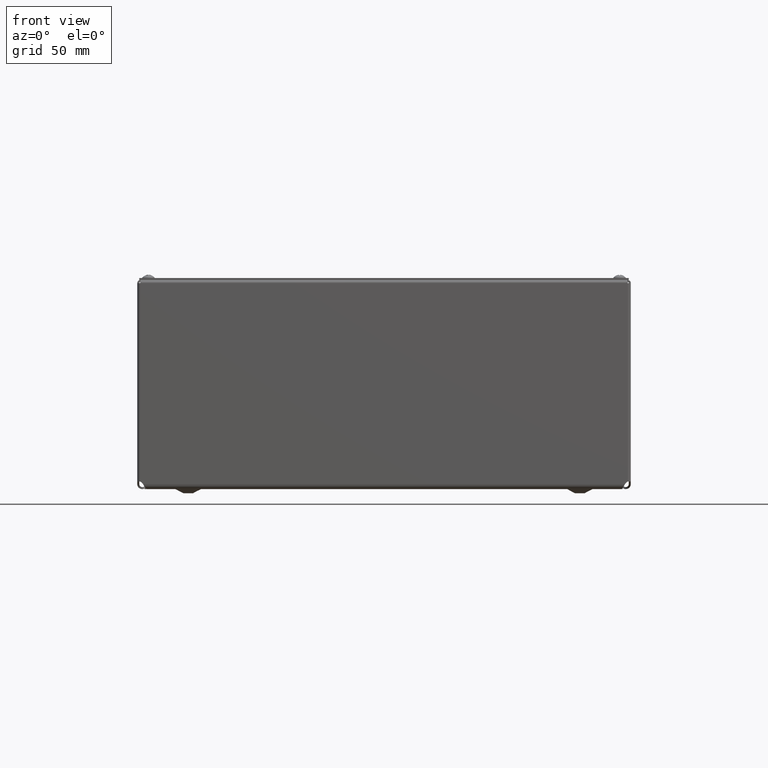
[diagram: clean part render]
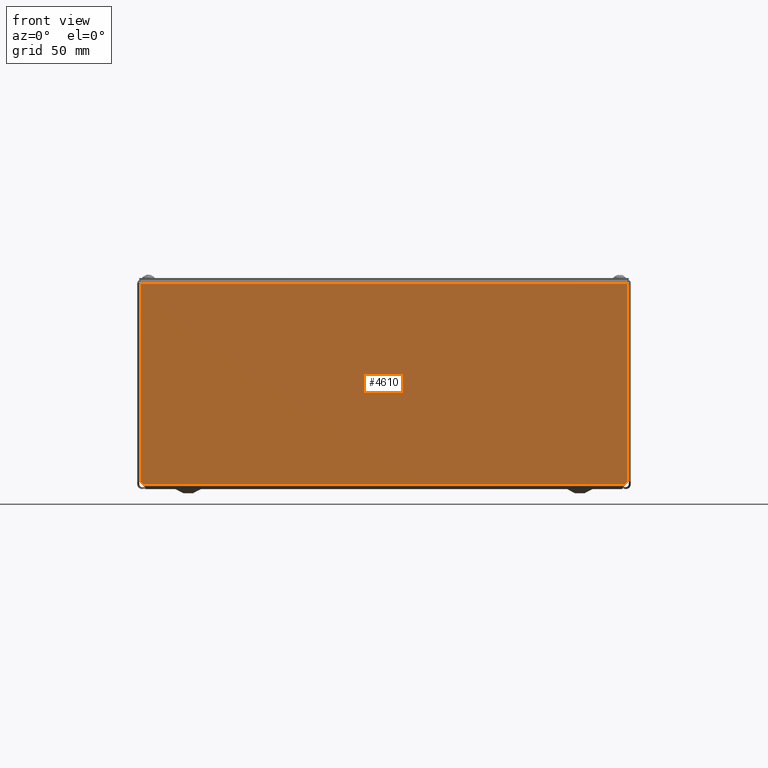
[diagram: same view with one face highlighted and labeled with its STEP entity id]
A machine part, front view. The second image highlights one B-rep face of the part: STEP entity #4610.
In plain terms, the highlighted planar face has unit normal (-0, 1, -0).
Its self-contained STEP definition (entity closure, byte-faithful):
#264=LINE($,#6931,#615);
#267=LINE($,#6938,#618);
#355=LINE($,#7811,#706);
#380=LINE($,#7875,#731);
#381=LINE($,#7878,#732);
#382=LINE($,#7879,#733);
#615=VECTOR($,#5504,0.0529349707269658);
#618=VECTOR($,#5509,0.0529349707269585);
#706=VECTOR($,#5657,6.08177673231954);
#731=VECTOR($,#5722,14.7706963948599);
#732=VECTOR($,#5725,14.9385);
#733=VECTOR($,#5726,6.08177673231954);
#945=PLANE($,#4965);
#1335=FACE_OUTER_BOUND($,#1678,.T.);
#1678=EDGE_LOOP($,(#3506,#3507,#3508,#3509,#3510,#3511,#3512,#3513));
#1925=CIRCLE($,#4925,0.11);
#1932=CIRCLE($,#4940,0.11);
#2112=VERTEX_POINT($,#6928);
#2113=VERTEX_POINT($,#6930);
#2114=VERTEX_POINT($,#6934);
#2116=VERTEX_POINT($,#6937);
#2119=VERTEX_POINT($,#6964);
#2196=VERTEX_POINT($,#7709);
#2215=VERTEX_POINT($,#7809);
#2231=VERTEX_POINT($,#7877);
#2524=EDGE_CURVE($,#2113,#2112,#264,.T.);
#2527=EDGE_CURVE($,#2116,#2114,#267,.T.);
#2631=EDGE_CURVE($,#2112,#2196,#1925,.T.);
#2653=EDGE_CURVE($,#2119,#2116,#1932,.T.);
#2664=EDGE_CURVE($,#2196,#2215,#355,.T.);
#2696=EDGE_CURVE($,#2114,#2113,#380,.T.);
#2697=EDGE_CURVE($,#2215,#2231,#381,.T.);
#2698=EDGE_CURVE($,#2231,#2119,#382,.T.);
#3506=ORIENTED_EDGE($,*,*,#2524,.T.);
#3507=ORIENTED_EDGE($,*,*,#2631,.T.);
#3508=ORIENTED_EDGE($,*,*,#2664,.T.);
#3509=ORIENTED_EDGE($,*,*,#2697,.T.);
#3510=ORIENTED_EDGE($,*,*,#2698,.T.);
#3511=ORIENTED_EDGE($,*,*,#2653,.T.);
#3512=ORIENTED_EDGE($,*,*,#2527,.T.);
#3513=ORIENTED_EDGE($,*,*,#2696,.T.);
#4610=ADVANCED_FACE($,(#1335),#945,.F.);
#4925=AXIS2_PLACEMENT_3D($,#7729,#5595,#5596);
#4940=AXIS2_PLACEMENT_3D($,#7769,#5640,#5641);
#4965=AXIS2_PLACEMENT_3D($,#7876,#5723,#5724);
#5504=DIRECTION($,(-9.92121209697388E-014,-0.766891857962092,0.64177634592703));
#5509=DIRECTION($,(-9.91993876319364E-014,0.76689185796215,0.641776345926961));
#5595=DIRECTION('center_axis',(-1.,8.30191223145857E-018,-1.54579948186689E-013));
#5596=DIRECTION('ref_axis',(-1.14384105292398E-013,-0.641776345927012,0.766891857962106));
#5640=DIRECTION('center_axis',(-1.,8.30191223145857E-018,-1.54579948186689E-013));
#5641=DIRECTION('ref_axis',(1.18709332613244E-013,0.64177634592696,-0.76689185796215));
#5657=DIRECTION($,(-4.15095611572876E-018,-1.,-4.15095611572902E-018));
#5722=DIRECTION($,(-1.55983071262839E-013,4.20872644712502E-017,1.));
#5723=DIRECTION('center_axis',(-1.,8.30191223145857E-018,-1.54579948186689E-013));
#5724=DIRECTION('ref_axis',(-1.55662149836643E-013,-4.15095611572835E-018,
1.));
#5725=DIRECTION($,(1.55983071262839E-013,-1.36295491595498E-016,-1.));
#5726=DIRECTION($,(4.15095611572876E-018,1.,4.15095611572902E-018));
#6928=CARTESIAN_POINT('',(7.56250000000026,3.05315460194803,-30.0402516738278));
#6930=CARTESIAN_POINT('',(7.56250000000025,3.09375,-30.0742240859128));
#6931=CARTESIAN_POINT($,(7.56250000000086,7.67724384968971,-33.9099382141729));
#6934=CARTESIAN_POINT('',(7.56250000000255,3.09375,-44.8449204807727));
#6937=CARTESIAN_POINT('',(7.56250000000256,3.05315460194803,-44.8788928928576));
#6938=CARTESIAN_POINT($,(7.56250000000285,0.800879982350571,-46.7637174093549));
#6964=CARTESIAN_POINT('',(7.56250000000257,3.01927673231954,-44.9288222833427));
#7709=CARTESIAN_POINT('',(7.56250000000024,3.01927673231954,-29.9903222833427));
#7729=CARTESIAN_POINT('Origin',(7.56250000000037,3.12375,-29.955893569452));
#7769=CARTESIAN_POINT('Origin',(7.56250000000257,3.12375,-44.9632509972334));
#7809=CARTESIAN_POINT('',(7.56250000000024,-3.0625,-29.9903222833427));
#7811=CARTESIAN_POINT($,(7.56250000000024,1.546875,-29.9903222833427));
#7875=CARTESIAN_POINT($,(7.56250000000258,3.09375,-45.0220722833427));
#7876=CARTESIAN_POINT('Origin',(7.56250000000373,2.85373815070954E-017,
-52.4791259972334));
#7877=CARTESIAN_POINT('',(7.56250000000257,-3.0625,-44.9288222833427));
#7878=CARTESIAN_POINT($,(7.56250000000082,-3.0625,-33.7249472833427));
#7879=CARTESIAN_POINT($,(7.56250000000257,-1.546875,-44.9288222833427));